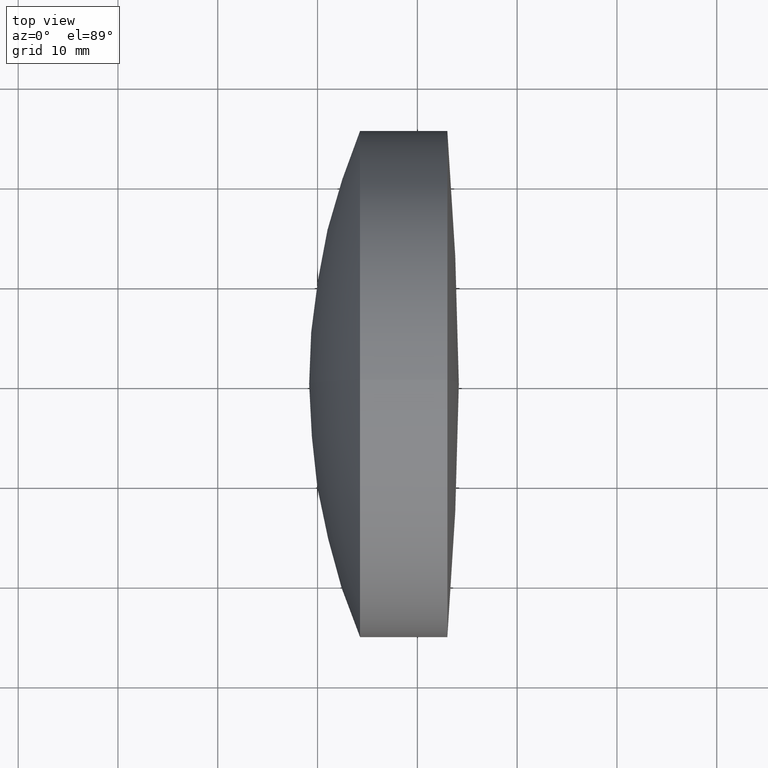
[diagram: clean part render]
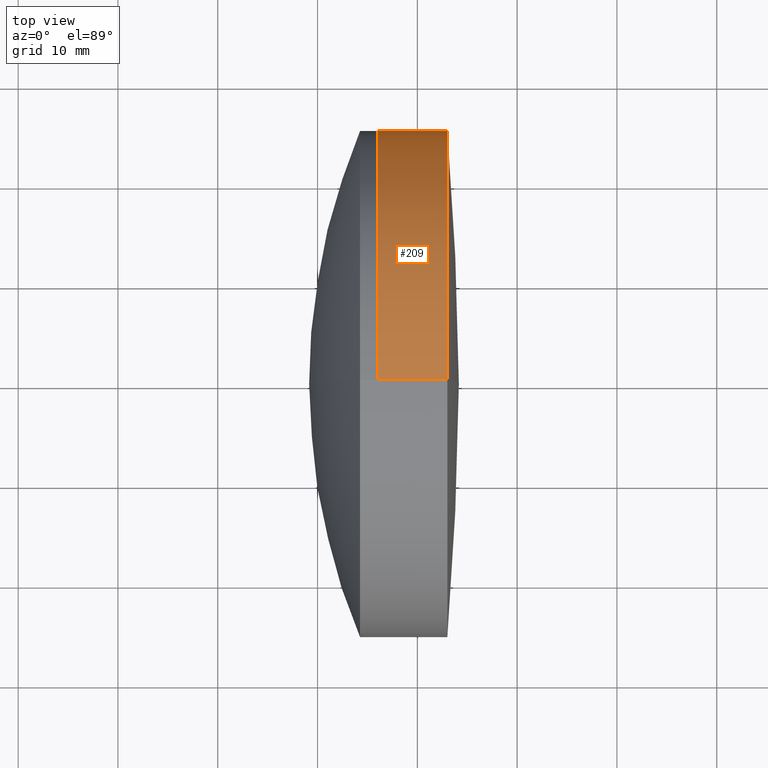
[diagram: same view with one face highlighted and labeled with its STEP entity id]
A machine part, top view. The second image highlights one B-rep face of the part: STEP entity #209.
In plain terms, the highlighted cylindrical surface (partial cylindrical patch) has radius 25.4 mm, axis along (-1, -0, -0).
Its self-contained STEP definition (entity closure, byte-faithful):
#2 = AXIS2_PLACEMENT_3D ( 'NONE', #224, #59, #14 ) ;
#7 = VERTEX_POINT ( 'NONE', #103 ) ;
#13 = CARTESIAN_POINT ( 'NONE',  ( 536.0667524492886300, 3.110602869834283200E-015, -25.40000000000006300 ) ) ;
#14 = DIRECTION ( 'NONE',  ( 0.0000000000000000000, 0.0000000000000000000, 1.000000000000000000 ) ) ;
#40 = CIRCLE ( 'NONE', #287, 25.40000000000005500 ) ;
#44 = ORIENTED_EDGE ( 'NONE', *, *, #114, .T. ) ;
#51 = DIRECTION ( 'NONE',  ( -1.000000000000000000, -0.0000000000000000000, -0.0000000000000000000 ) ) ;
#59 = DIRECTION ( 'NONE',  ( -1.000000000000000000, -0.0000000000000000000, -0.0000000000000000000 ) ) ;
#63 = ORIENTED_EDGE ( 'NONE', *, *, #248, .T. ) ;
#77 = EDGE_CURVE ( 'NONE', #312, #125, #174, .T. ) ;
#81 = AXIS2_PLACEMENT_3D ( 'NONE', #217, #51, #222 ) ;
#85 = VECTOR ( 'NONE', #247, 1000.000000000000000 ) ;
#88 = LINE ( 'NONE', #143, #259 ) ;
#103 = CARTESIAN_POINT ( 'NONE',  ( 543.0064638771954200, 3.110602869834284000E-015, -25.40000000000005500 ) ) ;
#105 = VERTEX_POINT ( 'NONE', #199 ) ;
#114 = EDGE_CURVE ( 'NONE', #105, #7, #40, .T. ) ;
#125 = VERTEX_POINT ( 'NONE', #13 ) ;
#143 = CARTESIAN_POINT ( 'NONE',  ( -0.5519199926577972300, 0.0000000000000000000, 25.40000000000005500 ) ) ;
#155 = CYLINDRICAL_SURFACE ( 'NONE', #2, 25.40000000000005500 ) ;
#174 = CIRCLE ( 'NONE', #81, 25.40000000000005200 ) ;
#181 = ORIENTED_EDGE ( 'NONE', *, *, #211, .F. ) ;
#199 = CARTESIAN_POINT ( 'NONE',  ( 543.0064638771954200, 0.0000000000000000000, 25.40000000000005500 ) ) ;
#209 = ADVANCED_FACE ( 'NONE', ( #316 ), #155, .T. ) ;
#211 = EDGE_CURVE ( 'NONE', #105, #312, #88, .T. ) ;
#217 = CARTESIAN_POINT ( 'NONE',  ( 536.0667524492886300, 0.0000000000000000000, 0.0000000000000000000 ) ) ;
#218 = CARTESIAN_POINT ( 'NONE',  ( -0.5519199926577972300, 3.110602869834284000E-015, -25.40000000000005500 ) ) ;
#222 = DIRECTION ( 'NONE',  ( 0.0000000000000000000, 0.0000000000000000000, 1.000000000000000000 ) ) ;
#224 = CARTESIAN_POINT ( 'NONE',  ( -0.5519199926577972300, 0.0000000000000000000, 0.0000000000000000000 ) ) ;
#227 = DIRECTION ( 'NONE',  ( 0.0000000000000000000, 0.0000000000000000000, 1.000000000000000000 ) ) ;
#247 = DIRECTION ( 'NONE',  ( -1.000000000000000000, -0.0000000000000000000, -0.0000000000000000000 ) ) ;
#248 = EDGE_CURVE ( 'NONE', #7, #125, #346, .T. ) ;
#257 = CARTESIAN_POINT ( 'NONE',  ( 543.0064638771954200, 0.0000000000000000000, 0.0000000000000000000 ) ) ;
#259 = VECTOR ( 'NONE', #309, 1000.000000000000000 ) ;
#269 = CARTESIAN_POINT ( 'NONE',  ( 536.0667524492886300, 0.0000000000000000000, 25.40000000000004800 ) ) ;
#276 = ORIENTED_EDGE ( 'NONE', *, *, #77, .F. ) ;
#278 = EDGE_LOOP ( 'NONE', ( #44, #63, #276, #181 ) ) ;
#287 = AXIS2_PLACEMENT_3D ( 'NONE', #257, #336, #227 ) ;
#309 = DIRECTION ( 'NONE',  ( -1.000000000000000000, -0.0000000000000000000, -0.0000000000000000000 ) ) ;
#312 = VERTEX_POINT ( 'NONE', #269 ) ;
#316 = FACE_OUTER_BOUND ( 'NONE', #278, .T. ) ;
#336 = DIRECTION ( 'NONE',  ( -1.000000000000000000, -0.0000000000000000000, -0.0000000000000000000 ) ) ;
#346 = LINE ( 'NONE', #218, #85 ) ;